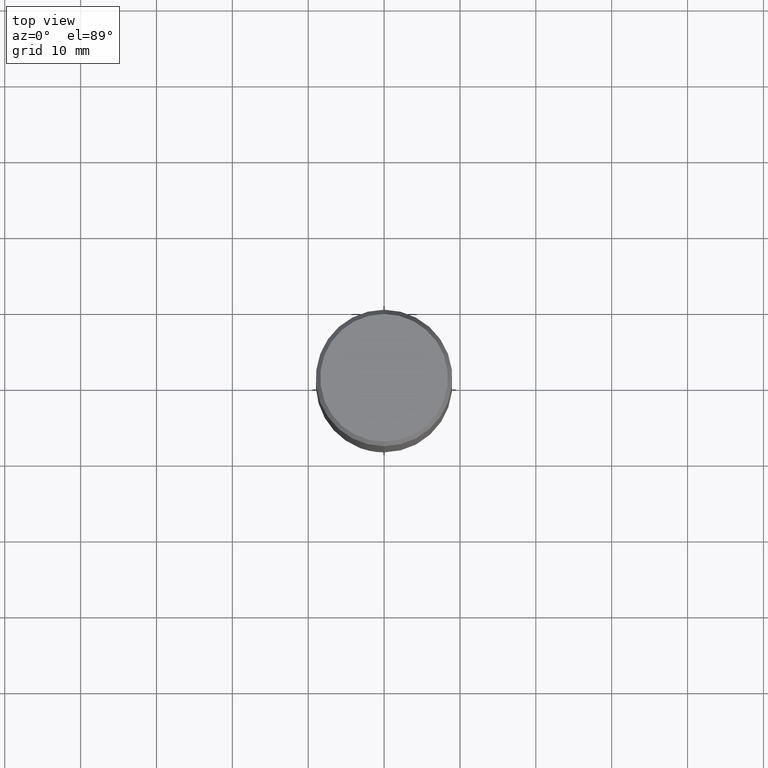
[diagram: clean part render]
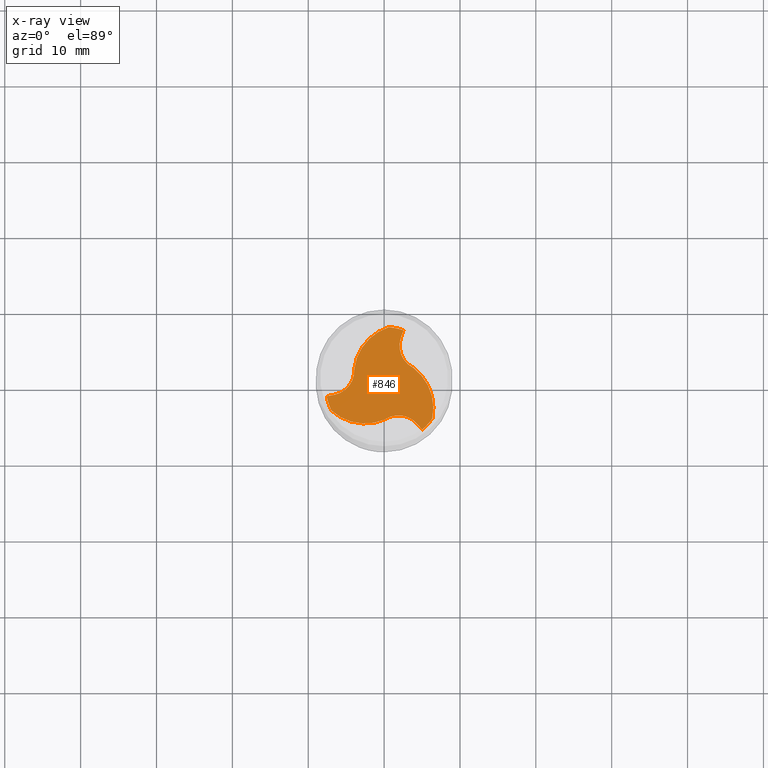
[diagram: x-ray — body ghosted, one internal face saturated and labeled with its STEP entity id]
A machine part, top view, then the same camera in x-ray: the body is ghosted and one INTERNAL B-rep face — a face not visible from any outside direction — is saturated and labeled: STEP entity #846.
In plain terms, the highlighted planar face has unit normal (0, 0, -1).
Its self-contained STEP definition (entity closure, byte-faithful):
#490=EDGE_CURVE('',#806,#1086,#1423,.T.);
#496=EDGE_CURVE('',#1116,#604,#1429,.T.);
#526=VERTEX_POINT('',#1462);
#540=VERTEX_POINT('',#1479);
#546=VERTEX_POINT('',#1486);
#572=EDGE_CURVE('',#546,#526,#1514,.T.);
#586=EDGE_CURVE('',#1398,#1116,#1529,.T.);
#604=VERTEX_POINT('',#1549);
#618=EDGE_CURVE('',#1310,#546,#1565,.T.);
#650=EDGE_CURVE('',#526,#856,#1598,.T.);
#752=EDGE_CURVE('',#856,#806,#1712,.T.);
#782=VERTEX_POINT('',#1746);
#806=VERTEX_POINT('',#1771);
#846=ADVANCED_FACE('',(#1813),#1814,.T.);
#856=VERTEX_POINT('',#1825);
#1060=EDGE_CURVE('',#1086,#782,#2044,.T.);
#1086=VERTEX_POINT('',#2070);
#1116=VERTEX_POINT('',#2103);
#1130=EDGE_CURVE('',#604,#1310,#2118,.T.);
#1142=EDGE_CURVE('',#782,#540,#2132,.T.);
#1154=VERTEX_POINT('',#2144);
#1162=EDGE_CURVE('',#540,#1154,#2153,.T.);
#1214=EDGE_CURVE('',#1154,#1398,#2208,.T.);
#1310=VERTEX_POINT('',#2315);
#1398=VERTEX_POINT('',#2411);
#1423=CIRCLE('',#2429,7.69995);
#1429=CIRCLE('',#2437,3.25333333);
#1462=CARTESIAN_POINT('',(4.36196893667145,-5.07680392195317,-58.0000000000037));
#1479=CARTESIAN_POINT('',(-3.93326816174343,2.16610951675824,-58.0000000000002));
#1486=CARTESIAN_POINT('',(5.01796953147397,-5.84030921987003,-58.0));
#1514=LINE('',#2665,#2666);
#1529=LINE('',#2948,#2949);
#1549=CARTESIAN_POINT('',(3.84253994975973,2.3232553895764,-57.999999999999));
#1565=CIRCLE('',#3505,7.69995);
#1598=CIRCLE('',#3677,3.25333333);
#1712=CIRCLE('',#5345,6.61440000000001);
#1746=CARTESIAN_POINT('',(-6.57762563478942,-1.23917394870119,-58.0000000000002));
#1771=CARTESIAN_POINT('',(-6.95305766862316,-3.30820480915264,-58.0));
#1813=FACE_OUTER_BOUND('',#5892,.T.);
#1814=PLANE('',#5893);
#1825=CARTESIAN_POINT('',(0.0907282119734418,-4.48936490633798,-58.0000000000036));
#2044=LINE('',#7325,#7326);
#2070=CARTESIAN_POINT('',(-7.56684091610093,-1.42553447973765,-58.0000000000002));
#2103=CARTESIAN_POINT('',(2.21565669810752,6.31597787065114,-57.999999999999));
#2118=CIRCLE('',#7918,6.61440000000001);
#2132=CIRCLE('',#7962,3.25333333);
#2144=CARTESIAN_POINT('',(0.611539428661686,7.67562697958233,-58.0000000000002));
#2153=CIRCLE('',#8001,6.61440000000001);
#2208=CIRCLE('',#8281,7.69995);
#2315=CARTESIAN_POINT('',(6.34151823995872,-4.36742217043084,-58.0));
#2411=CARTESIAN_POINT('',(2.54887138462674,7.26584369960784,-58.0));
#2429=AXIS2_PLACEMENT_3D('',#10427,#10428,#10429);
#2437=AXIS2_PLACEMENT_3D('',#10433,#10434,#10435);
#2665=CARTESIAN_POINT('',(4.36196893667145,-5.07680392195317,-58.0000000000037));
#2666=VECTOR('',#10543,0.999999999999999);
#2948=CARTESIAN_POINT('',(2.21565669810752,6.31597787065114,-57.999999999999));
#2949=VECTOR('',#10556,0.999999999999999);
#3505=AXIS2_PLACEMENT_3D('',#10599,#10600,#10601);
#3677=AXIS2_PLACEMENT_3D('',#10622,#10623,#10624);
#5345=AXIS2_PLACEMENT_3D('',#10761,#10762,#10763);
#5892=EDGE_LOOP('',(#10861,#10862,#10863,#10864,#10865,#10866,#10867,#10868,#10869,#10870,#10871,#10872));
#5893=AXIS2_PLACEMENT_3D('',#10873,#10874,#10875);
#7325=CARTESIAN_POINT('',(-6.57762563478942,-1.23917394870119,-58.0000000000002));
#7326=VECTOR('',#11161,1.0);
#7918=AXIS2_PLACEMENT_3D('',#11223,#11224,#11225);
#7962=AXIS2_PLACEMENT_3D('',#11244,#11245,#11246);
#8001=AXIS2_PLACEMENT_3D('',#11266,#11267,#11268);
#8281=AXIS2_PLACEMENT_3D('',#11320,#11321,#11322);
#10427=CARTESIAN_POINT('',(0.0,0.0,-58.0));
#10428=DIRECTION('',(0.0,0.0,-1.0));
#10429=DIRECTION('',(0.0,1.0,0.0));
#10433=CARTESIAN_POINT('',(5.28557422737163,5.23904513354225,-57.999999999999));
#10434=DIRECTION('',(4.77395900588817E-015,3.44169137633798E-015,1.0));
#10435=DIRECTION('',(-0.443555618540806,-0.896246848396625,5.20212138894194E-015));
#10543=DIRECTION('',(-0.651688586480962,0.758486642104161,1.11022302462516E-015));
#10556=DIRECTION('',(-0.331024407252873,-0.943622192300967,4.88498130835069E-015));
#10599=CARTESIAN_POINT('',(0.0,0.0,-58.0));
#10600=DIRECTION('',(0.0,0.0,-1.0));
#10601=DIRECTION('',(0.0,1.0,0.0));
#10622=CARTESIAN_POINT('',(1.89435906353597,-7.19696412126456,-58.0000000000036));
#10623=DIRECTION('',(9.27036225562006E-015,7.16093850883226E-015,1.0));
#10624=DIRECTION('',(-0.55439472950281,0.832253857845973,-8.20278724675895E-016));
#10761=CARTESIAN_POINT('',(-2.51040545866377,1.59211443568711,-58.0000000000036));
#10762=DIRECTION('',(-9.27036225562006E-015,-7.16093850883226E-015,-1.0));
#10763=DIRECTION('',(0.393253155333388,-0.919430234340994,2.93838416317096E-015));
#10861=ORIENTED_EDGE('',*,*,#586,.T.);
#10862=ORIENTED_EDGE('',*,*,#496,.T.);
#10863=ORIENTED_EDGE('',*,*,#1130,.T.);
#10864=ORIENTED_EDGE('',*,*,#618,.T.);
#10865=ORIENTED_EDGE('',*,*,#572,.T.);
#10866=ORIENTED_EDGE('',*,*,#650,.T.);
#10867=ORIENTED_EDGE('',*,*,#752,.T.);
#10868=ORIENTED_EDGE('',*,*,#490,.T.);
#10869=ORIENTED_EDGE('',*,*,#1060,.T.);
#10870=ORIENTED_EDGE('',*,*,#1142,.T.);
#10871=ORIENTED_EDGE('',*,*,#1162,.T.);
#10872=ORIENTED_EDGE('',*,*,#1214,.T.);
#10873=CARTESIAN_POINT('',(0.0,3.849975,-58.0));
#10874=DIRECTION('',(0.0,0.0,-1.0));
#10875=DIRECTION('',(0.0,1.0,0.0));
#11161=DIRECTION('',(0.982712993733846,0.185135550196774,-5.55111512312578E-016));
#11223=CARTESIAN_POINT('',(-0.123608817705644,-2.970132118847,-57.9999999999989));
#11224=DIRECTION('',(-4.77395900588817E-015,-3.44169137633799E-015,-1.0));
#11225=DIRECTION('',(0.599623362280082,0.800282339807601,-5.61690217804935E-015));
#11244=CARTESIAN_POINT('',(-7.17993329091794,1.9579189877191,-58.0000000000002));
#11245=DIRECTION('',(6.10622663543836E-016,-6.10622663543836E-016,1.0));
#11246=DIRECTION('',(0.997950348043623,0.0639929905506177,-5.70295529268742E-016));
#11266=CARTESIAN_POINT('',(2.63401427635912,1.37801768315632,-58.0000000000002));
#11267=DIRECTION('',(-6.10622663543836E-016,6.10622663543836E-016,-1.0));
#11268=DIRECTION('',(-0.99287651761347,0.119147894533427,6.79027308470907E-016));
#11320=CARTESIAN_POINT('',(0.0,0.0,-58.0));
#11321=DIRECTION('',(0.0,0.0,-1.0));
#11322=DIRECTION('',(0.0,1.0,0.0));